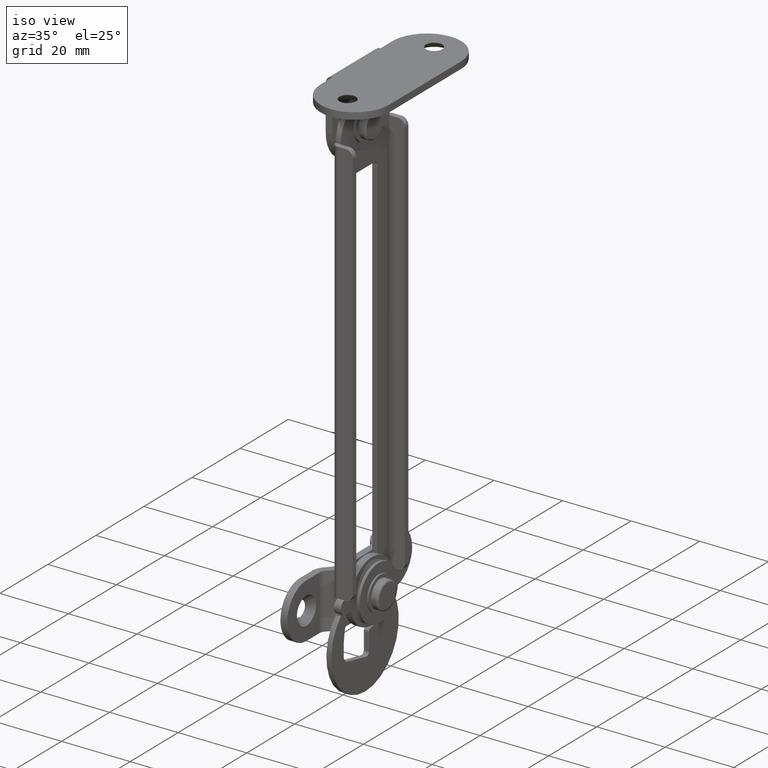
[diagram: clean part render]
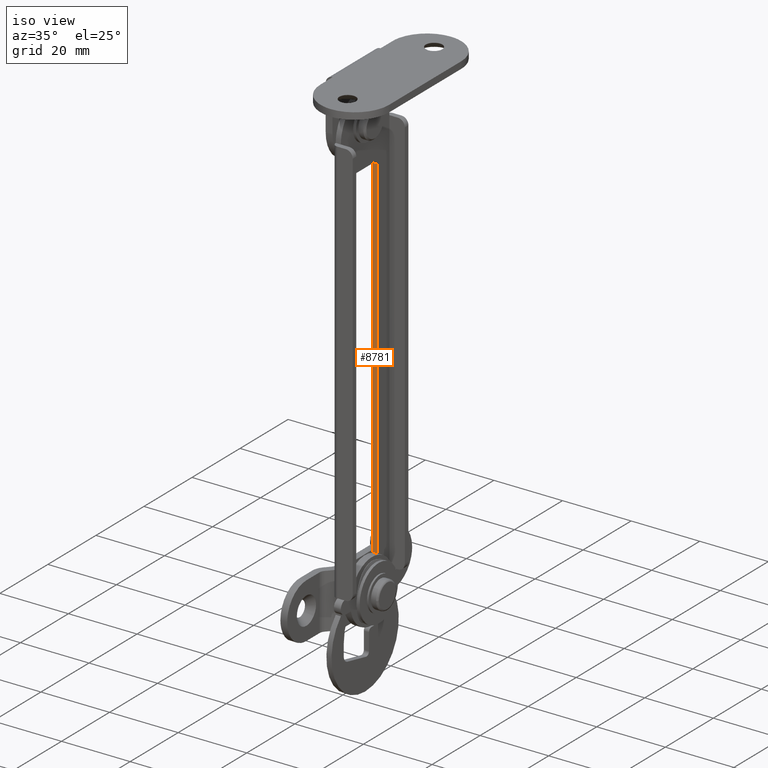
[diagram: same view with one face highlighted and labeled with its STEP entity id]
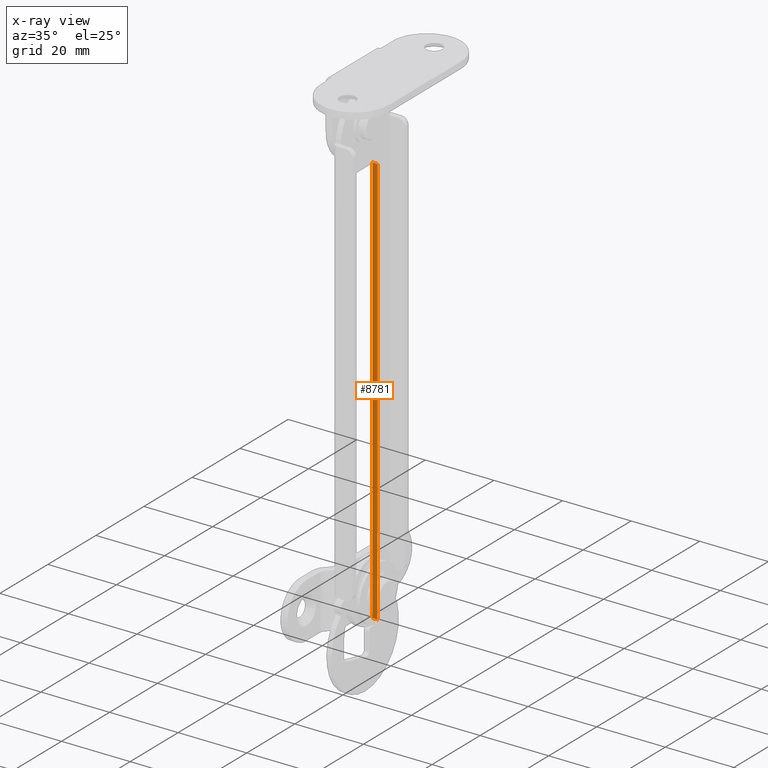
[diagram: x-ray of the same camera — body ghosted, the highlighted face saturated]
A machine part, iso view. The second image highlights one B-rep face of the part: STEP entity #8781.
The next image is the same camera in x-ray: the body ghosted, the highlighted face saturated — about 0% of this face is hidden behind the body in this view.
In plain terms, the highlighted face is a freeform B-spline surface patch.
Its self-contained STEP definition (entity closure, byte-faithful):
#8286=CARTESIAN_POINT('',(5.0,5.100007000000000,-133.000014999999990));
#8287=VERTEX_POINT('',#8286);
#8298=CARTESIAN_POINT('',(5.0,5.100006999999841,-13.0));
#8299=VERTEX_POINT('',#8298);
#8300=CARTESIAN_POINT('',(5.0,5.100007000000000,-133.000014999999990));
#8301=CARTESIAN_POINT('',(5.0,5.100006999999841,-13.0));
#8302=QUASI_UNIFORM_CURVE('',1,(#8300,#8301),.UNSPECIFIED.,.F.,.U.);
#8303=EDGE_CURVE('',#8287,#8299,#8302,.T.);
#8740=CARTESIAN_POINT('',(6.500000000000000,5.100007000000000,-133.000014999999990));
#8741=VERTEX_POINT('',#8740);
#8752=CARTESIAN_POINT('',(6.500000000000000,5.100007000000000,-133.000014999999990));
#8753=CARTESIAN_POINT('',(5.0,5.100007000000000,-133.000014999999990));
#8754=QUASI_UNIFORM_CURVE('',1,(#8752,#8753),.UNSPECIFIED.,.F.,.U.);
#8755=EDGE_CURVE('',#8741,#8287,#8754,.T.);
#8760=CARTESIAN_POINT('',(4.925075002907291,5.100006999999851,-7.005999483333316));
#8761=CARTESIAN_POINT('',(4.925075002907291,5.100006999999851,-138.994018735317890));
#8762=CARTESIAN_POINT('',(6.574925037325845,5.100006999999851,-7.005999483333316));
#8763=CARTESIAN_POINT('',(6.574925037325845,5.100006999999851,-138.994018735317890));
#8764=B_SPLINE_SURFACE_WITH_KNOTS('',1,1,((#8760,#8762),(#8761,#8763)),.UNSPECIFIED.,.F.,.F.,.U.,(2,2),(2,2),(0.0,131.988019251984610),(0.041708334948495,0.958291687403247),.UNSPECIFIED.);
#8765=ORIENTED_EDGE('',*,*,#8303,.F.);
#8766=ORIENTED_EDGE('',*,*,#8755,.F.);
#8767=CARTESIAN_POINT('',(6.500000000000000,5.100006999999841,-13.0));
#8768=VERTEX_POINT('',#8767);
#8769=CARTESIAN_POINT('',(6.500000000000000,5.100007000000000,-133.000014999999990));
#8770=CARTESIAN_POINT('',(6.500000000000000,5.100006999999841,-13.0));
#8771=QUASI_UNIFORM_CURVE('',1,(#8769,#8770),.UNSPECIFIED.,.F.,.U.);
#8772=EDGE_CURVE('',#8741,#8768,#8771,.T.);
#8773=ORIENTED_EDGE('',*,*,#8772,.T.);
#8774=CARTESIAN_POINT('',(6.500000000000000,5.100006999999841,-13.0));
#8775=CARTESIAN_POINT('',(5.0,5.100006999999841,-13.0));
#8776=QUASI_UNIFORM_CURVE('',1,(#8774,#8775),.UNSPECIFIED.,.F.,.U.);
#8777=EDGE_CURVE('',#8768,#8299,#8776,.T.);
#8778=ORIENTED_EDGE('',*,*,#8777,.T.);
#8779=EDGE_LOOP('',(#8765,#8766,#8773,#8778));
#8780=FACE_OUTER_BOUND('',#8779,.T.);
#8781=ADVANCED_FACE('',(#8780),#8764,.T.);